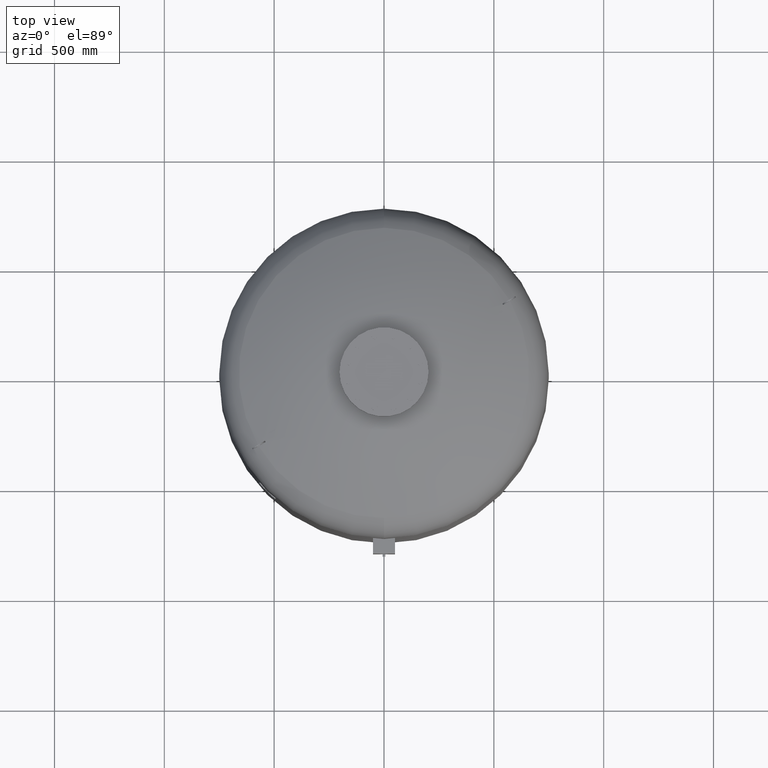
[diagram: clean part render]
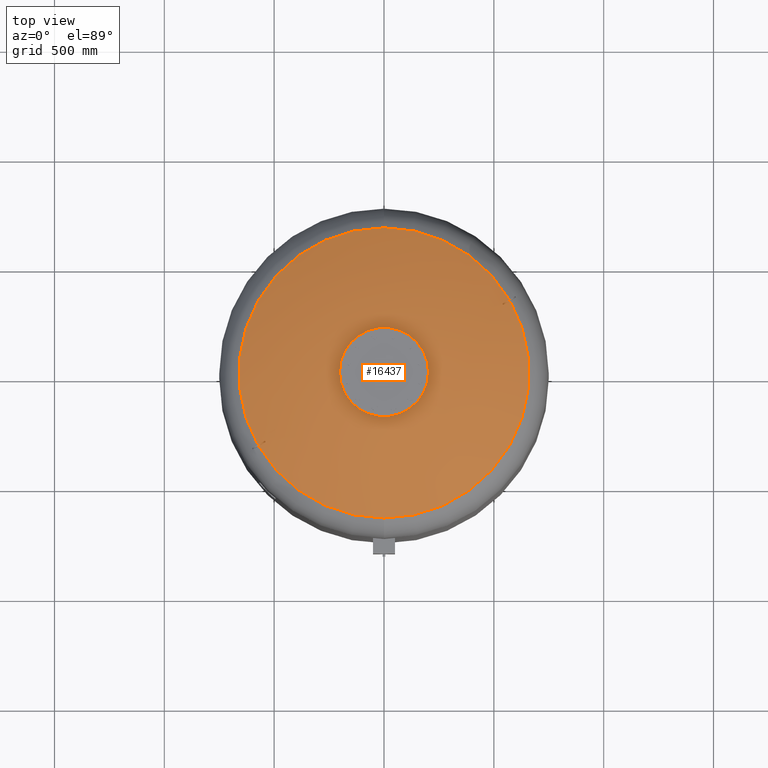
[diagram: same view with one face highlighted and labeled with its STEP entity id]
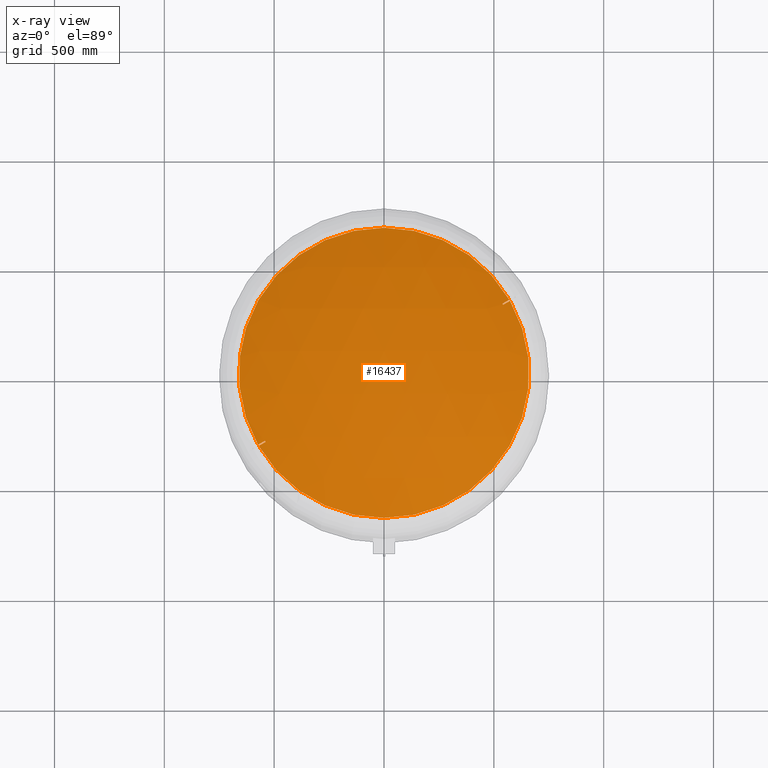
[diagram: x-ray of the same camera — body ghosted, the highlighted face saturated]
A machine part, top view. The second image highlights one B-rep face of the part: STEP entity #16437.
The next image is the same camera in x-ray: the body ghosted, the highlighted face saturated — about 0% of this face is hidden behind the body in this view.
In plain terms, the highlighted spherical surface has radius 1509 mm.
Its self-contained STEP definition (entity closure, byte-faithful):
#15841=CARTESIAN_POINT('',(2.782883E-014,-660.606666666666800,2273.716562866229200));
#15842=VERTEX_POINT('',#15841);
#15858=CARTESIAN_POINT('',(1.087271E-013,660.606666666666800,2273.716562866229200));
#15859=VERTEX_POINT('',#15858);
#15867=CARTESIAN_POINT('',(570.596255916202270,332.898003566943030,2273.716562866229200));
#15868=VERTEX_POINT('',#15867);
#15869=CARTESIAN_POINT('',(7.530601E-015,-2.797401E-014,2273.716562866229200));
#15870=DIRECTION('',(0.0,0.0,-1.0));
#15871=DIRECTION('',(1.0,0.0,0.0));
#15872=AXIS2_PLACEMENT_3D('',#15869,#15870,#15871);
#15873=CIRCLE('',#15872,660.606666666666800);
#15874=EDGE_CURVE('',#15859,#15868,#15873,.T.);
#15903=CARTESIAN_POINT('',(573.596255916202270,327.701851144236400,2273.716562866229200));
#15904=VERTEX_POINT('',#15903);
#15918=CARTESIAN_POINT('',(7.530601E-015,-2.797401E-014,2273.716562866229200));
#15919=DIRECTION('',(0.0,0.0,-1.0));
#15920=DIRECTION('',(1.0,0.0,0.0));
#15921=AXIS2_PLACEMENT_3D('',#15918,#15919,#15920);
#15922=CIRCLE('',#15921,660.606666666666800);
#15923=EDGE_CURVE('',#15904,#15842,#15922,.T.);
#15975=CARTESIAN_POINT('',(-570.596255916196580,-332.898003566952920,2273.716562866229700));
#15976=VERTEX_POINT('',#15975);
#15992=CARTESIAN_POINT('',(-539.004547741172360,-314.658522347942950,2290.879584180558100));
#15993=VERTEX_POINT('',#15992);
#15994=CARTESIAN_POINT('',(1.500000000005994,-2.598076211363742,917.0));
#15995=DIRECTION('',(0.499999999999994,-0.866025403784442,0.0));
#15996=DIRECTION('',(0.0,0.0,1.0));
#15997=AXIS2_PLACEMENT_3D('',#15994,#15995,#15996);
#15998=CIRCLE('',#15997,1508.997017889697400);
#15999=EDGE_CURVE('',#15993,#15976,#15998,.T.);
#16042=CARTESIAN_POINT('',(-542.004547741172470,-309.462369925236320,2290.879584180558100));
#16043=VERTEX_POINT('',#16042);
#16044=CARTESIAN_POINT('',(-195.850324208316520,-113.074237402545550,854.348481320245580));
#16045=DIRECTION('',(0.834590199910602,0.481850876581402,0.266981143436977));
#16046=DIRECTION('',(0.0,0.484652475916135,-0.874706795211036));
#16047=AXIS2_PLACEMENT_3D('',#16044,#16045,#16046);
#16048=CIRCLE('',#16047,1490.641692208577100);
#16049=EDGE_CURVE('',#16043,#15993,#16048,.T.);
#16127=CARTESIAN_POINT('',(-573.596255916196580,-327.701851144246290,2273.716562866229700));
#16128=VERTEX_POINT('',#16127);
#16151=CARTESIAN_POINT('',(-1.499999999993967,2.598076211342912,917.0));
#16152=DIRECTION('',(-0.499999999999994,0.866025403784442,0.0));
#16153=DIRECTION('',(0.0,0.0,-1.0));
#16154=AXIS2_PLACEMENT_3D('',#16151,#16152,#16153);
#16155=CIRCLE('',#16154,1508.997017889697400);
#16156=EDGE_CURVE('',#16128,#16043,#16155,.T.);
#16183=CARTESIAN_POINT('',(7.530601E-015,-2.797401E-014,2273.716562866229200));
#16184=DIRECTION('',(0.0,0.0,-1.0));
#16185=DIRECTION('',(1.0,0.0,0.0));
#16186=AXIS2_PLACEMENT_3D('',#16183,#16184,#16185);
#16187=CIRCLE('',#16186,660.606666666666800);
#16188=EDGE_CURVE('',#15842,#15976,#16187,.T.);
#16193=CARTESIAN_POINT('',(7.530601E-015,-2.797401E-014,2273.716562866229200));
#16194=DIRECTION('',(0.0,0.0,-1.0));
#16195=DIRECTION('',(1.0,0.0,0.0));
#16196=AXIS2_PLACEMENT_3D('',#16193,#16194,#16195);
#16197=CIRCLE('',#16196,660.606666666666800);
#16198=EDGE_CURVE('',#16128,#15859,#16197,.T.);
#16218=CARTESIAN_POINT('',(539.004547741178380,314.658522347932720,2290.879584180558100));
#16219=VERTEX_POINT('',#16218);
#16220=CARTESIAN_POINT('',(-1.499999999993948,2.598076211342792,917.0));
#16221=DIRECTION('',(-0.500000000000006,0.866025403784435,0.0));
#16222=DIRECTION('',(0.0,0.0,-1.0));
#16223=AXIS2_PLACEMENT_3D('',#16220,#16221,#16222);
#16224=CIRCLE('',#16223,1508.997017889697400);
#16225=EDGE_CURVE('',#16219,#15868,#16224,.T.);
#16268=CARTESIAN_POINT('',(542.004547741178380,309.462369925225970,2290.879584180558100));
#16269=VERTEX_POINT('',#16268);
#16270=CARTESIAN_POINT('',(195.850324208315390,113.074237402547780,854.348481320245360));
#16271=DIRECTION('',(-0.834590199910595,-0.481850876581413,0.266981143436977));
#16272=DIRECTION('',(0.0,0.484652475916126,0.874706795211040));
#16273=AXIS2_PLACEMENT_3D('',#16270,#16271,#16272);
#16274=CIRCLE('',#16273,1490.641692208577100);
#16275=EDGE_CURVE('',#16269,#16219,#16274,.T.);
#16406=CARTESIAN_POINT('',(1.500000000006090,-2.598076211363818,917.0));
#16407=DIRECTION('',(0.500000000000006,-0.866025403784435,0.0));
#16408=DIRECTION('',(0.0,0.0,1.0));
#16409=AXIS2_PLACEMENT_3D('',#16406,#16407,#16408);
#16410=CIRCLE('',#16409,1508.997017889697400);
#16411=EDGE_CURVE('',#15904,#16269,#16410,.T.);
#16420=CARTESIAN_POINT('',(1.607048E-013,-2.771988E-013,917.0));
#16421=DIRECTION('',(0.0,-1.0,0.0));
#16422=DIRECTION('',(-1.0,0.0,0.0));
#16423=AXIS2_PLACEMENT_3D('',#16420,#16421,#16422);
#16424=SPHERICAL_SURFACE('',#16423,1509.0);
#16425=ORIENTED_EDGE('',*,*,#15999,.T.);
#16426=ORIENTED_EDGE('',*,*,#16188,.F.);
#16427=ORIENTED_EDGE('',*,*,#15923,.F.);
#16428=ORIENTED_EDGE('',*,*,#16411,.T.);
#16429=ORIENTED_EDGE('',*,*,#16275,.T.);
#16430=ORIENTED_EDGE('',*,*,#16225,.T.);
#16431=ORIENTED_EDGE('',*,*,#15874,.F.);
#16432=ORIENTED_EDGE('',*,*,#16198,.F.);
#16433=ORIENTED_EDGE('',*,*,#16156,.T.);
#16434=ORIENTED_EDGE('',*,*,#16049,.T.);
#16435=EDGE_LOOP('',(#16425,#16426,#16427,#16428,#16429,#16430,#16431,#16432,#16433,#16434));
#16436=FACE_OUTER_BOUND('',#16435,.T.);
#16437=ADVANCED_FACE('',(#16436),#16424,.T.);